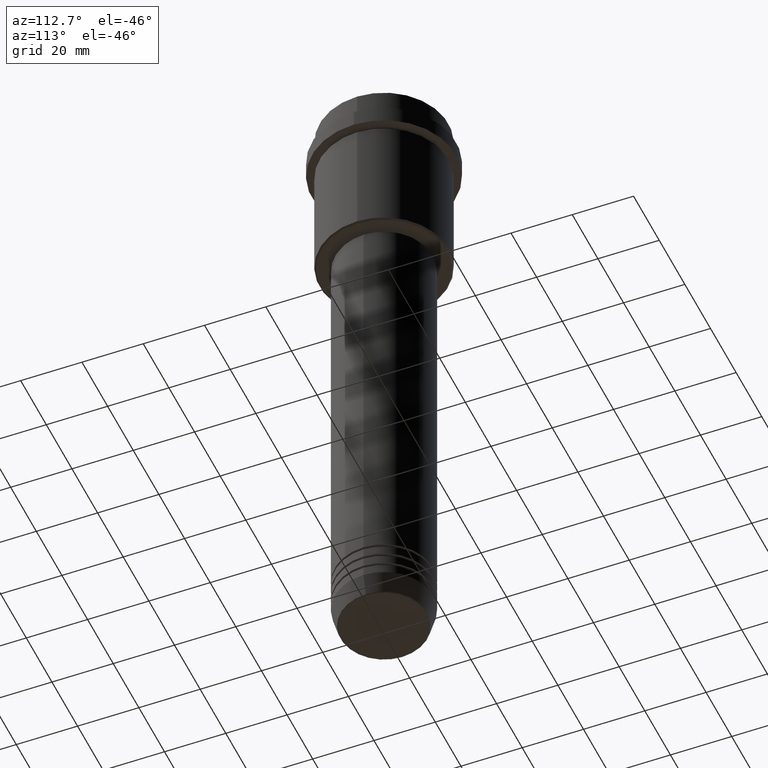
[diagram: clean part render]
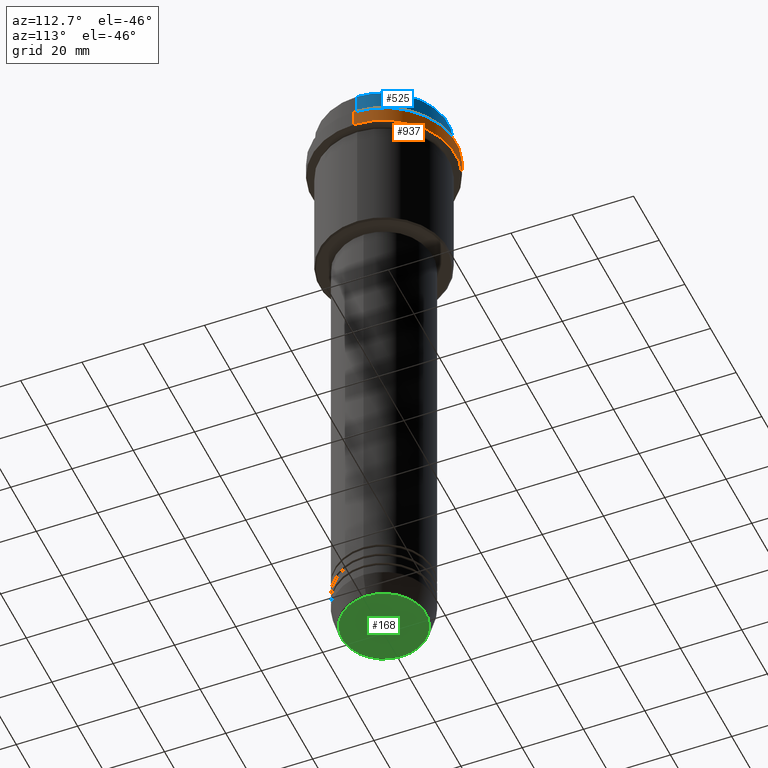
[diagram: same view with three faces highlighted in distinct colors, each labeled with its STEP entity id]
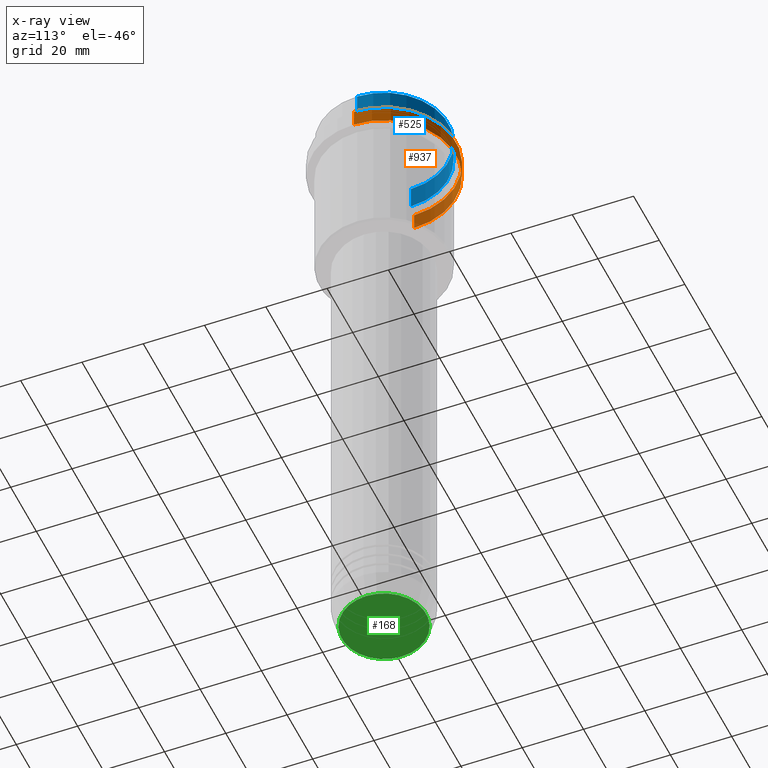
[diagram: x-ray of the same camera — body ghosted, the three highlighted faces saturated]
A machine part, auxiliary view with three faces highlighted in distinct colors.
The next image is the same camera in x-ray (body ghosted, the three faces saturated) — at least one of them is partly hidden behind the body in this view.
Their STEP definitions:

[orange] entity #937 — the highlighted cylindrical surface (partial cylindrical patch) has radius 23.5 mm, axis along (-0, -0, 1).
#3 = CARTESIAN_POINT ( 'NONE',  ( -23.50000000000000000, 2.877919977996280320E-15, -9.499999999999973355 ) ) ;
#94 = FACE_OUTER_BOUND ( 'NONE', #1190, .T. ) ;
#97 = DIRECTION ( 'NONE',  ( -0.000000000000000000, -0.000000000000000000, 1.000000000000000000 ) ) ;
#198 = EDGE_CURVE ( 'NONE', #765, #301, #632, .T. ) ;
#231 = CARTESIAN_POINT ( 'NONE',  ( 0.000000000000000000, 0.000000000000000000, -15.00000000000000178 ) ) ;
#256 = DIRECTION ( 'NONE',  ( 1.000000000000000000, 0.000000000000000000, 0.000000000000000000 ) ) ;
#301 = VERTEX_POINT ( 'NONE', #1332 ) ;
#303 = CARTESIAN_POINT ( 'NONE',  ( 23.50000000000000000, 0.000000000000000000, 0.000000000000000000 ) ) ;
#330 = VECTOR ( 'NONE', #354, 1000.000000000000000 ) ;
#354 = DIRECTION ( 'NONE',  ( -0.000000000000000000, -0.000000000000000000, 1.000000000000000000 ) ) ;
#394 = ORIENTED_EDGE ( 'NONE', *, *, #198, .F. ) ;
#443 = EDGE_CURVE ( 'NONE', #1255, #1384, #832, .T. ) ;
#514 = CIRCLE ( 'NONE', #762, 23.50000000000000000 ) ;
#537 = DIRECTION ( 'NONE',  ( 0.000000000000000000, 0.000000000000000000, -1.000000000000000000 ) ) ;
#575 = DIRECTION ( 'NONE',  ( -0.000000000000000000, -0.000000000000000000, 1.000000000000000000 ) ) ;
#601 = AXIS2_PLACEMENT_3D ( 'NONE', #231, #575, #1140 ) ;
#632 = LINE ( 'NONE', #303, #1407 ) ;
#644 = AXIS2_PLACEMENT_3D ( 'NONE', #1306, #931, #256 ) ;
#651 = CARTESIAN_POINT ( 'NONE',  ( 0.000000000000000000, 0.000000000000000000, -9.499999999999973355 ) ) ;
#745 = CARTESIAN_POINT ( 'NONE',  ( -23.50000000000000711, 2.877919977996281109E-15, -15.00000000000000178 ) ) ;
#762 = AXIS2_PLACEMENT_3D ( 'NONE', #651, #537, #871 ) ;
#765 = VERTEX_POINT ( 'NONE', #766 ) ;
#766 = CARTESIAN_POINT ( 'NONE',  ( 23.50000000000000355, 0.000000000000000000, -15.00000000000000178 ) ) ;
#814 = ORIENTED_EDGE ( 'NONE', *, *, #443, .T. ) ;
#828 = CIRCLE ( 'NONE', #601, 23.50000000000000355 ) ;
#832 = LINE ( 'NONE', #1061, #330 ) ;
#843 = ORIENTED_EDGE ( 'NONE', *, *, #1154, .T. ) ;
#871 = DIRECTION ( 'NONE',  ( 1.000000000000000000, 0.000000000000000000, 0.000000000000000000 ) ) ;
#931 = DIRECTION ( 'NONE',  ( -0.000000000000000000, -0.000000000000000000, 1.000000000000000000 ) ) ;
#937 = ADVANCED_FACE ( 'NONE', ( #94 ), #987, .T. ) ;
#987 = CYLINDRICAL_SURFACE ( 'NONE', #644, 23.50000000000000000 ) ;
#1061 = CARTESIAN_POINT ( 'NONE',  ( -23.50000000000000000, 2.877919977996280320E-15, 0.000000000000000000 ) ) ;
#1118 = ORIENTED_EDGE ( 'NONE', *, *, #1136, .T. ) ;
#1136 = EDGE_CURVE ( 'NONE', #1384, #301, #514, .T. ) ;
#1140 = DIRECTION ( 'NONE',  ( 1.000000000000000000, 0.000000000000000000, 0.000000000000000000 ) ) ;
#1154 = EDGE_CURVE ( 'NONE', #765, #1255, #828, .T. ) ;
#1190 = EDGE_LOOP ( 'NONE', ( #843, #814, #1118, #394 ) ) ;
#1255 = VERTEX_POINT ( 'NONE', #745 ) ;
#1306 = CARTESIAN_POINT ( 'NONE',  ( 0.000000000000000000, 0.000000000000000000, 0.000000000000000000 ) ) ;
#1332 = CARTESIAN_POINT ( 'NONE',  ( 23.50000000000000000, 0.000000000000000000, -9.499999999999973355 ) ) ;
#1384 = VERTEX_POINT ( 'NONE', #3 ) ;
#1407 = VECTOR ( 'NONE', #97, 1000.000000000000000 ) ;

[blue] entity #525 — the highlighted cylindrical surface (partial cylindrical patch) has radius 21 mm, axis along (-0, -0, 1).
#16 = DIRECTION ( 'NONE',  ( -0.000000000000000000, -0.000000000000000000, 1.000000000000000000 ) ) ;
#29 = LINE ( 'NONE', #359, #855 ) ;
#107 = DIRECTION ( 'NONE',  ( 1.000000000000000000, 0.000000000000000000, 0.000000000000000000 ) ) ;
#114 = CARTESIAN_POINT ( 'NONE',  ( -20.99999999999999645, 2.571758278209441267E-15, -7.999999999999998224 ) ) ;
#127 = AXIS2_PLACEMENT_3D ( 'NONE', #1302, #1102, #312 ) ;
#166 = DIRECTION ( 'NONE',  ( -0.000000000000000000, -0.000000000000000000, 1.000000000000000000 ) ) ;
#232 = EDGE_CURVE ( 'NONE', #630, #1307, #688, .T. ) ;
#240 = CIRCLE ( 'NONE', #127, 20.99999999999999645 ) ;
#285 = DIRECTION ( 'NONE',  ( 1.000000000000000000, 0.000000000000000000, 0.000000000000000000 ) ) ;
#312 = DIRECTION ( 'NONE',  ( 1.000000000000000000, 0.000000000000000000, 0.000000000000000000 ) ) ;
#343 = CARTESIAN_POINT ( 'NONE',  ( 0.000000000000000000, 0.000000000000000000, -0.5000000000000073275 ) ) ;
#359 = CARTESIAN_POINT ( 'NONE',  ( 20.99999999999999645, 0.000000000000000000, 0.000000000000000000 ) ) ;
#410 = ORIENTED_EDGE ( 'NONE', *, *, #1044, .F. ) ;
#417 = CYLINDRICAL_SURFACE ( 'NONE', #1148, 20.99999999999999645 ) ;
#525 = ADVANCED_FACE ( 'NONE', ( #841 ), #417, .T. ) ;
#540 = ORIENTED_EDGE ( 'NONE', *, *, #232, .T. ) ;
#630 = VERTEX_POINT ( 'NONE', #1145 ) ;
#688 = CIRCLE ( 'NONE', #872, 20.99999999999999645 ) ;
#730 = VERTEX_POINT ( 'NONE', #1402 ) ;
#749 = EDGE_CURVE ( 'NONE', #730, #1336, #240, .T. ) ;
#811 = VECTOR ( 'NONE', #1072, 1000.000000000000000 ) ;
#841 = FACE_OUTER_BOUND ( 'NONE', #1283, .T. ) ;
#855 = VECTOR ( 'NONE', #16, 1000.000000000000000 ) ;
#861 = LINE ( 'NONE', #1383, #811 ) ;
#872 = AXIS2_PLACEMENT_3D ( 'NONE', #343, #1105, #107 ) ;
#975 = ORIENTED_EDGE ( 'NONE', *, *, #1024, .T. ) ;
#1024 = EDGE_CURVE ( 'NONE', #1336, #630, #861, .T. ) ;
#1044 = EDGE_CURVE ( 'NONE', #730, #1307, #29, .T. ) ;
#1072 = DIRECTION ( 'NONE',  ( -0.000000000000000000, -0.000000000000000000, 1.000000000000000000 ) ) ;
#1102 = DIRECTION ( 'NONE',  ( -0.000000000000000000, -0.000000000000000000, 1.000000000000000000 ) ) ;
#1105 = DIRECTION ( 'NONE',  ( 0.000000000000000000, 0.000000000000000000, -1.000000000000000000 ) ) ;
#1145 = CARTESIAN_POINT ( 'NONE',  ( -20.99999999999999645, 2.571758278209441267E-15, -0.5000000000000073275 ) ) ;
#1148 = AXIS2_PLACEMENT_3D ( 'NONE', #1267, #166, #285 ) ;
#1233 = CARTESIAN_POINT ( 'NONE',  ( 20.99999999999999645, 0.000000000000000000, -0.5000000000000073275 ) ) ;
#1267 = CARTESIAN_POINT ( 'NONE',  ( 0.000000000000000000, 0.000000000000000000, 0.000000000000000000 ) ) ;
#1283 = EDGE_LOOP ( 'NONE', ( #1308, #975, #540, #410 ) ) ;
#1302 = CARTESIAN_POINT ( 'NONE',  ( 0.000000000000000000, 0.000000000000000000, -7.999999999999998224 ) ) ;
#1307 = VERTEX_POINT ( 'NONE', #1233 ) ;
#1308 = ORIENTED_EDGE ( 'NONE', *, *, #749, .T. ) ;
#1336 = VERTEX_POINT ( 'NONE', #114 ) ;
#1383 = CARTESIAN_POINT ( 'NONE',  ( -20.99999999999999645, 2.571758278209441267E-15, 0.000000000000000000 ) ) ;
#1402 = CARTESIAN_POINT ( 'NONE',  ( 20.99999999999999645, 0.000000000000000000, -7.999999999999998224 ) ) ;

[green] entity #168 — the highlighted planar face has unit normal (0, -0, 1).
#36 = CARTESIAN_POINT ( 'NONE',  ( -13.74069215899265828, 1.712322416342415986E-15, -210.0000000000000284 ) ) ;
#156 = CARTESIAN_POINT ( 'NONE',  ( 0.000000000000000000, 0.000000000000000000, -210.0000000000000284 ) ) ;
#168 = ADVANCED_FACE ( 'NONE', ( #283 ), #1375, .F. ) ;
#174 = DIRECTION ( 'NONE',  ( 1.000000000000000000, 0.000000000000000000, 0.000000000000000000 ) ) ;
#260 = DIRECTION ( 'NONE',  ( 0.000000000000000000, 0.000000000000000000, -1.000000000000000000 ) ) ;
#263 = AXIS2_PLACEMENT_3D ( 'NONE', #1241, #704, #697 ) ;
#283 = FACE_OUTER_BOUND ( 'NONE', #834, .T. ) ;
#355 = AXIS2_PLACEMENT_3D ( 'NONE', #156, #399, #174 ) ;
#388 = CIRCLE ( 'NONE', #1202, 13.74069215899265828 ) ;
#399 = DIRECTION ( 'NONE',  ( 0.000000000000000000, -0.000000000000000000, 1.000000000000000000 ) ) ;
#499 = ORIENTED_EDGE ( 'NONE', *, *, #597, .T. ) ;
#597 = EDGE_CURVE ( 'NONE', #970, #1189, #1410, .T. ) ;
#697 = DIRECTION ( 'NONE',  ( 1.000000000000000000, 0.000000000000000000, 0.000000000000000000 ) ) ;
#701 = CARTESIAN_POINT ( 'NONE',  ( 0.000000000000000000, 0.000000000000000000, -210.0000000000000284 ) ) ;
#704 = DIRECTION ( 'NONE',  ( 0.000000000000000000, 0.000000000000000000, -1.000000000000000000 ) ) ;
#834 = EDGE_LOOP ( 'NONE', ( #1319, #499 ) ) ;
#970 = VERTEX_POINT ( 'NONE', #36 ) ;
#976 = EDGE_CURVE ( 'NONE', #1189, #970, #388, .T. ) ;
#1051 = CARTESIAN_POINT ( 'NONE',  ( 13.74069215899265828, 0.000000000000000000, -210.0000000000000284 ) ) ;
#1189 = VERTEX_POINT ( 'NONE', #1051 ) ;
#1202 = AXIS2_PLACEMENT_3D ( 'NONE', #701, #260, #1359 ) ;
#1241 = CARTESIAN_POINT ( 'NONE',  ( 0.000000000000000000, 0.000000000000000000, -210.0000000000000284 ) ) ;
#1319 = ORIENTED_EDGE ( 'NONE', *, *, #976, .T. ) ;
#1359 = DIRECTION ( 'NONE',  ( 1.000000000000000000, 0.000000000000000000, 0.000000000000000000 ) ) ;
#1375 = PLANE ( 'NONE',  #355 ) ;
#1410 = CIRCLE ( 'NONE', #263, 13.74069215899265828 ) ;